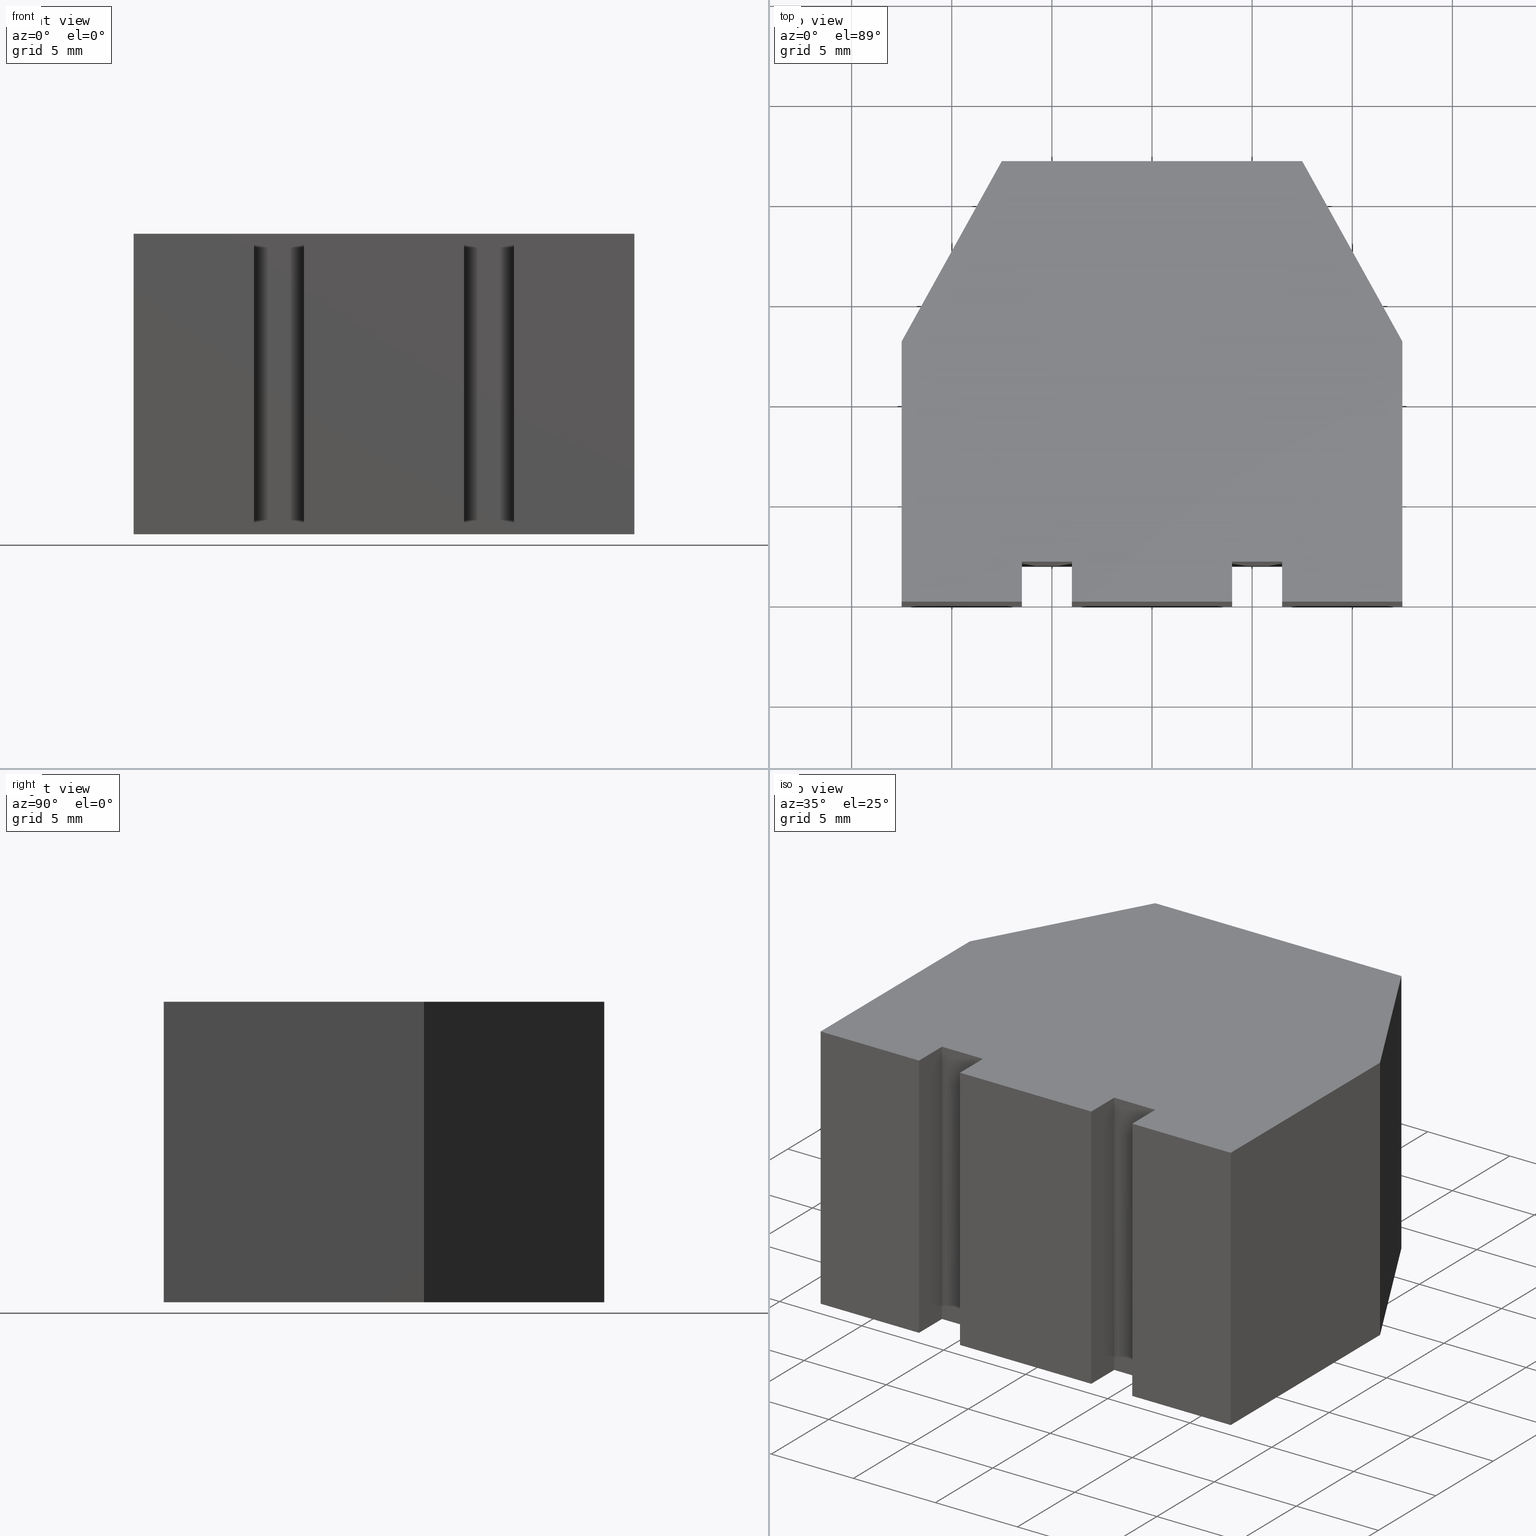
[diagram: canonical four-view strip — front | top / right | iso, engineering-drawing reading convention]
A machine part, canonical four-view strip (front | top / right | iso — engineering-drawing reading convention). The complete STEP part file that produces these views, byte-faithful:
ISO-10303-21;
HEADER;
/* Generated by software containing ST-Developer
 * from STEP Tools, Inc. (www.steptools.com) 
 */

FILE_DESCRIPTION(
/* description */ (''),
/* implementation_level */ '2;1');

FILE_NAME(
/* name */ 'E_3_01_06_07_00_WKZ-0119.stp',
/* time_stamp */ '2025-11-24T11:43:42+01:00',
/* author */ ('d.fischer'),
/* organization */ (''),
/* preprocessor_version */ 'ST-DEVELOPER v20',
/* originating_system */ 'Autodesk Inventor 2025',
/* authorisation */ '');

FILE_SCHEMA (('AUTOMOTIVE_DESIGN { 1 0 10303 214 3 1 1 }'));
ENDSEC;

DATA;
#10=MECHANICAL_DESIGN_GEOMETRIC_PRESENTATION_REPRESENTATION('',(#14,#15),
#523);
#11=SHAPE_REPRESENTATION_RELATIONSHIP('SRR','None',#530,#12);
#12=ADVANCED_BREP_SHAPE_REPRESENTATION('',(#13),#522);
#13=MANIFOLD_SOLID_BREP('Volumenk\X\F6rper1',#318);
#14=STYLED_ITEM('',(#540),#306);
#15=STYLED_ITEM('',(#539),#13);
#16=FACE_OUTER_BOUND('',#32,.T.);
#17=FACE_OUTER_BOUND('',#33,.T.);
#18=FACE_OUTER_BOUND('',#34,.T.);
#19=FACE_OUTER_BOUND('',#35,.T.);
#20=FACE_OUTER_BOUND('',#36,.T.);
#21=FACE_OUTER_BOUND('',#37,.T.);
#22=FACE_OUTER_BOUND('',#38,.T.);
#23=FACE_OUTER_BOUND('',#39,.T.);
#24=FACE_OUTER_BOUND('',#40,.T.);
#25=FACE_OUTER_BOUND('',#41,.T.);
#26=FACE_OUTER_BOUND('',#42,.T.);
#27=FACE_OUTER_BOUND('',#43,.T.);
#28=FACE_OUTER_BOUND('',#44,.T.);
#29=FACE_OUTER_BOUND('',#45,.T.);
#30=FACE_OUTER_BOUND('',#46,.T.);
#31=FACE_OUTER_BOUND('',#47,.T.);
#32=EDGE_LOOP('',(#202,#203,#204,#205,#206,#207,#208,#209,#210,#211,#212,
#213,#214,#215));
#33=EDGE_LOOP('',(#216,#217,#218,#219));
#34=EDGE_LOOP('',(#220,#221,#222,#223));
#35=EDGE_LOOP('',(#224,#225,#226,#227));
#36=EDGE_LOOP('',(#228,#229,#230,#231));
#37=EDGE_LOOP('',(#232,#233,#234,#235));
#38=EDGE_LOOP('',(#236,#237,#238,#239));
#39=EDGE_LOOP('',(#240,#241,#242,#243));
#40=EDGE_LOOP('',(#244,#245,#246,#247));
#41=EDGE_LOOP('',(#248,#249,#250,#251));
#42=EDGE_LOOP('',(#252,#253,#254,#255));
#43=EDGE_LOOP('',(#256,#257,#258,#259));
#44=EDGE_LOOP('',(#260,#261,#262,#263));
#45=EDGE_LOOP('',(#264,#265,#266,#267));
#46=EDGE_LOOP('',(#268,#269,#270,#271));
#47=EDGE_LOOP('',(#272,#273,#274,#275,#276,#277,#278,#279,#280,#281,#282,
#283,#284,#285));
#48=LINE('',#437,#90);
#49=LINE('',#439,#91);
#50=LINE('',#441,#92);
#51=LINE('',#443,#93);
#52=LINE('',#445,#94);
#53=LINE('',#447,#95);
#54=LINE('',#449,#96);
#55=LINE('',#451,#97);
#56=LINE('',#453,#98);
#57=LINE('',#455,#99);
#58=LINE('',#457,#100);
#59=LINE('',#459,#101);
#60=LINE('',#461,#102);
#61=LINE('',#462,#103);
#62=LINE('',#466,#104);
#63=LINE('',#467,#105);
#64=LINE('',#468,#106);
#65=LINE('',#471,#107);
#66=LINE('',#472,#108);
#67=LINE('',#475,#109);
#68=LINE('',#476,#110);
#69=LINE('',#479,#111);
#70=LINE('',#480,#112);
#71=LINE('',#483,#113);
#72=LINE('',#484,#114);
#73=LINE('',#487,#115);
#74=LINE('',#488,#116);
#75=LINE('',#491,#117);
#76=LINE('',#492,#118);
#77=LINE('',#495,#119);
#78=LINE('',#496,#120);
#79=LINE('',#499,#121);
#80=LINE('',#500,#122);
#81=LINE('',#503,#123);
#82=LINE('',#504,#124);
#83=LINE('',#507,#125);
#84=LINE('',#508,#126);
#85=LINE('',#511,#127);
#86=LINE('',#512,#128);
#87=LINE('',#515,#129);
#88=LINE('',#516,#130);
#89=LINE('',#518,#131);
#90=VECTOR('',#361,10.);
#91=VECTOR('',#362,10.);
#92=VECTOR('',#363,10.);
#93=VECTOR('',#364,10.);
#94=VECTOR('',#365,10.);
#95=VECTOR('',#366,10.);
#96=VECTOR('',#367,10.);
#97=VECTOR('',#368,10.);
#98=VECTOR('',#369,10.);
#99=VECTOR('',#370,10.);
#100=VECTOR('',#371,10.);
#101=VECTOR('',#372,10.);
#102=VECTOR('',#373,10.);
#103=VECTOR('',#374,10.);
#104=VECTOR('',#377,10.);
#105=VECTOR('',#378,10.);
#106=VECTOR('',#379,10.);
#107=VECTOR('',#382,10.);
#108=VECTOR('',#383,10.);
#109=VECTOR('',#386,10.);
#110=VECTOR('',#387,10.);
#111=VECTOR('',#390,10.);
#112=VECTOR('',#391,10.);
#113=VECTOR('',#394,10.);
#114=VECTOR('',#395,10.);
#115=VECTOR('',#398,10.);
#116=VECTOR('',#399,10.);
#117=VECTOR('',#402,10.);
#118=VECTOR('',#403,10.);
#119=VECTOR('',#406,10.);
#120=VECTOR('',#407,10.);
#121=VECTOR('',#410,10.);
#122=VECTOR('',#411,10.);
#123=VECTOR('',#414,10.);
#124=VECTOR('',#415,10.);
#125=VECTOR('',#418,10.);
#126=VECTOR('',#419,10.);
#127=VECTOR('',#422,10.);
#128=VECTOR('',#423,10.);
#129=VECTOR('',#426,10.);
#130=VECTOR('',#427,10.);
#131=VECTOR('',#430,10.);
#132=VERTEX_POINT('',#435);
#133=VERTEX_POINT('',#436);
#134=VERTEX_POINT('',#438);
#135=VERTEX_POINT('',#440);
#136=VERTEX_POINT('',#442);
#137=VERTEX_POINT('',#444);
#138=VERTEX_POINT('',#446);
#139=VERTEX_POINT('',#448);
#140=VERTEX_POINT('',#450);
#141=VERTEX_POINT('',#452);
#142=VERTEX_POINT('',#454);
#143=VERTEX_POINT('',#456);
#144=VERTEX_POINT('',#458);
#145=VERTEX_POINT('',#460);
#146=VERTEX_POINT('',#464);
#147=VERTEX_POINT('',#465);
#148=VERTEX_POINT('',#470);
#149=VERTEX_POINT('',#474);
#150=VERTEX_POINT('',#478);
#151=VERTEX_POINT('',#482);
#152=VERTEX_POINT('',#486);
#153=VERTEX_POINT('',#490);
#154=VERTEX_POINT('',#494);
#155=VERTEX_POINT('',#498);
#156=VERTEX_POINT('',#502);
#157=VERTEX_POINT('',#506);
#158=VERTEX_POINT('',#510);
#159=VERTEX_POINT('',#514);
#160=EDGE_CURVE('',#132,#133,#48,.T.);
#161=EDGE_CURVE('',#134,#132,#49,.T.);
#162=EDGE_CURVE('',#135,#134,#50,.T.);
#163=EDGE_CURVE('',#136,#135,#51,.T.);
#164=EDGE_CURVE('',#137,#136,#52,.T.);
#165=EDGE_CURVE('',#138,#137,#53,.T.);
#166=EDGE_CURVE('',#139,#138,#54,.T.);
#167=EDGE_CURVE('',#140,#139,#55,.T.);
#168=EDGE_CURVE('',#141,#140,#56,.T.);
#169=EDGE_CURVE('',#142,#141,#57,.T.);
#170=EDGE_CURVE('',#143,#142,#58,.T.);
#171=EDGE_CURVE('',#144,#143,#59,.T.);
#172=EDGE_CURVE('',#145,#144,#60,.T.);
#173=EDGE_CURVE('',#133,#145,#61,.T.);
#174=EDGE_CURVE('',#146,#147,#62,.T.);
#175=EDGE_CURVE('',#147,#135,#63,.T.);
#176=EDGE_CURVE('',#146,#134,#64,.T.);
#177=EDGE_CURVE('',#147,#148,#65,.T.);
#178=EDGE_CURVE('',#148,#136,#66,.T.);
#179=EDGE_CURVE('',#148,#149,#67,.T.);
#180=EDGE_CURVE('',#149,#137,#68,.T.);
#181=EDGE_CURVE('',#149,#150,#69,.T.);
#182=EDGE_CURVE('',#150,#138,#70,.T.);
#183=EDGE_CURVE('',#150,#151,#71,.T.);
#184=EDGE_CURVE('',#151,#139,#72,.T.);
#185=EDGE_CURVE('',#151,#152,#73,.T.);
#186=EDGE_CURVE('',#152,#140,#74,.T.);
#187=EDGE_CURVE('',#152,#153,#75,.T.);
#188=EDGE_CURVE('',#153,#141,#76,.T.);
#189=EDGE_CURVE('',#153,#154,#77,.T.);
#190=EDGE_CURVE('',#154,#142,#78,.T.);
#191=EDGE_CURVE('',#154,#155,#79,.T.);
#192=EDGE_CURVE('',#155,#143,#80,.T.);
#193=EDGE_CURVE('',#155,#156,#81,.T.);
#194=EDGE_CURVE('',#156,#144,#82,.T.);
#195=EDGE_CURVE('',#156,#157,#83,.T.);
#196=EDGE_CURVE('',#157,#145,#84,.T.);
#197=EDGE_CURVE('',#157,#158,#85,.T.);
#198=EDGE_CURVE('',#158,#133,#86,.T.);
#199=EDGE_CURVE('',#158,#159,#87,.T.);
#200=EDGE_CURVE('',#132,#159,#88,.T.);
#201=EDGE_CURVE('',#159,#146,#89,.T.);
#202=ORIENTED_EDGE('',*,*,#160,.F.);
#203=ORIENTED_EDGE('',*,*,#161,.F.);
#204=ORIENTED_EDGE('',*,*,#162,.F.);
#205=ORIENTED_EDGE('',*,*,#163,.F.);
#206=ORIENTED_EDGE('',*,*,#164,.F.);
#207=ORIENTED_EDGE('',*,*,#165,.F.);
#208=ORIENTED_EDGE('',*,*,#166,.F.);
#209=ORIENTED_EDGE('',*,*,#167,.F.);
#210=ORIENTED_EDGE('',*,*,#168,.F.);
#211=ORIENTED_EDGE('',*,*,#169,.F.);
#212=ORIENTED_EDGE('',*,*,#170,.F.);
#213=ORIENTED_EDGE('',*,*,#171,.F.);
#214=ORIENTED_EDGE('',*,*,#172,.F.);
#215=ORIENTED_EDGE('',*,*,#173,.F.);
#216=ORIENTED_EDGE('',*,*,#174,.T.);
#217=ORIENTED_EDGE('',*,*,#175,.T.);
#218=ORIENTED_EDGE('',*,*,#162,.T.);
#219=ORIENTED_EDGE('',*,*,#176,.F.);
#220=ORIENTED_EDGE('',*,*,#177,.T.);
#221=ORIENTED_EDGE('',*,*,#178,.T.);
#222=ORIENTED_EDGE('',*,*,#163,.T.);
#223=ORIENTED_EDGE('',*,*,#175,.F.);
#224=ORIENTED_EDGE('',*,*,#179,.T.);
#225=ORIENTED_EDGE('',*,*,#180,.T.);
#226=ORIENTED_EDGE('',*,*,#164,.T.);
#227=ORIENTED_EDGE('',*,*,#178,.F.);
#228=ORIENTED_EDGE('',*,*,#181,.T.);
#229=ORIENTED_EDGE('',*,*,#182,.T.);
#230=ORIENTED_EDGE('',*,*,#165,.T.);
#231=ORIENTED_EDGE('',*,*,#180,.F.);
#232=ORIENTED_EDGE('',*,*,#183,.T.);
#233=ORIENTED_EDGE('',*,*,#184,.T.);
#234=ORIENTED_EDGE('',*,*,#166,.T.);
#235=ORIENTED_EDGE('',*,*,#182,.F.);
#236=ORIENTED_EDGE('',*,*,#185,.T.);
#237=ORIENTED_EDGE('',*,*,#186,.T.);
#238=ORIENTED_EDGE('',*,*,#167,.T.);
#239=ORIENTED_EDGE('',*,*,#184,.F.);
#240=ORIENTED_EDGE('',*,*,#187,.T.);
#241=ORIENTED_EDGE('',*,*,#188,.T.);
#242=ORIENTED_EDGE('',*,*,#168,.T.);
#243=ORIENTED_EDGE('',*,*,#186,.F.);
#244=ORIENTED_EDGE('',*,*,#189,.T.);
#245=ORIENTED_EDGE('',*,*,#190,.T.);
#246=ORIENTED_EDGE('',*,*,#169,.T.);
#247=ORIENTED_EDGE('',*,*,#188,.F.);
#248=ORIENTED_EDGE('',*,*,#191,.T.);
#249=ORIENTED_EDGE('',*,*,#192,.T.);
#250=ORIENTED_EDGE('',*,*,#170,.T.);
#251=ORIENTED_EDGE('',*,*,#190,.F.);
#252=ORIENTED_EDGE('',*,*,#193,.T.);
#253=ORIENTED_EDGE('',*,*,#194,.T.);
#254=ORIENTED_EDGE('',*,*,#171,.T.);
#255=ORIENTED_EDGE('',*,*,#192,.F.);
#256=ORIENTED_EDGE('',*,*,#195,.T.);
#257=ORIENTED_EDGE('',*,*,#196,.T.);
#258=ORIENTED_EDGE('',*,*,#172,.T.);
#259=ORIENTED_EDGE('',*,*,#194,.F.);
#260=ORIENTED_EDGE('',*,*,#197,.T.);
#261=ORIENTED_EDGE('',*,*,#198,.T.);
#262=ORIENTED_EDGE('',*,*,#173,.T.);
#263=ORIENTED_EDGE('',*,*,#196,.F.);
#264=ORIENTED_EDGE('',*,*,#199,.T.);
#265=ORIENTED_EDGE('',*,*,#200,.F.);
#266=ORIENTED_EDGE('',*,*,#160,.T.);
#267=ORIENTED_EDGE('',*,*,#198,.F.);
#268=ORIENTED_EDGE('',*,*,#201,.T.);
#269=ORIENTED_EDGE('',*,*,#176,.T.);
#270=ORIENTED_EDGE('',*,*,#161,.T.);
#271=ORIENTED_EDGE('',*,*,#200,.T.);
#272=ORIENTED_EDGE('',*,*,#174,.F.);
#273=ORIENTED_EDGE('',*,*,#201,.F.);
#274=ORIENTED_EDGE('',*,*,#199,.F.);
#275=ORIENTED_EDGE('',*,*,#197,.F.);
#276=ORIENTED_EDGE('',*,*,#195,.F.);
#277=ORIENTED_EDGE('',*,*,#193,.F.);
#278=ORIENTED_EDGE('',*,*,#191,.F.);
#279=ORIENTED_EDGE('',*,*,#189,.F.);
#280=ORIENTED_EDGE('',*,*,#187,.F.);
#281=ORIENTED_EDGE('',*,*,#185,.F.);
#282=ORIENTED_EDGE('',*,*,#183,.F.);
#283=ORIENTED_EDGE('',*,*,#181,.F.);
#284=ORIENTED_EDGE('',*,*,#179,.F.);
#285=ORIENTED_EDGE('',*,*,#177,.F.);
#286=PLANE('',#341);
#287=PLANE('',#342);
#288=PLANE('',#343);
#289=PLANE('',#344);
#290=PLANE('',#345);
#291=PLANE('',#346);
#292=PLANE('',#347);
#293=PLANE('',#348);
#294=PLANE('',#349);
#295=PLANE('',#350);
#296=PLANE('',#351);
#297=PLANE('',#352);
#298=PLANE('',#353);
#299=PLANE('',#354);
#300=PLANE('',#355);
#301=PLANE('',#356);
#302=ADVANCED_FACE('',(#16),#286,.F.);
#303=ADVANCED_FACE('',(#17),#287,.T.);
#304=ADVANCED_FACE('',(#18),#288,.T.);
#305=ADVANCED_FACE('',(#19),#289,.T.);
#306=ADVANCED_FACE('',(#20),#290,.T.);
#307=ADVANCED_FACE('',(#21),#291,.T.);
#308=ADVANCED_FACE('',(#22),#292,.T.);
#309=ADVANCED_FACE('',(#23),#293,.T.);
#310=ADVANCED_FACE('',(#24),#294,.T.);
#311=ADVANCED_FACE('',(#25),#295,.T.);
#312=ADVANCED_FACE('',(#26),#296,.T.);
#313=ADVANCED_FACE('',(#27),#297,.T.);
#314=ADVANCED_FACE('',(#28),#298,.T.);
#315=ADVANCED_FACE('',(#29),#299,.T.);
#316=ADVANCED_FACE('',(#30),#300,.T.);
#317=ADVANCED_FACE('',(#31),#301,.T.);
#318=CLOSED_SHELL('',(#302,#303,#304,#305,#306,#307,#308,#309,#310,#311,
#312,#313,#314,#315,#316,#317));
#319=DERIVED_UNIT_ELEMENT(#322,1.);
#320=DERIVED_UNIT_ELEMENT(#525,-3.);
#321=DIMENSIONAL_EXPONENTS(0.,1.,0.,0.,0.,0.,0.);
#322=(
CONVERSION_BASED_UNIT('gram',#324)
MASS_UNIT()
NAMED_UNIT(#321)
);
#323=(
MASS_UNIT()
NAMED_UNIT(*)
SI_UNIT(.KILO.,.GRAM.)
);
#324=MASS_MEASURE_WITH_UNIT(MASS_MEASURE(0.001),#323);
#325=DERIVED_UNIT((#319,#320));
#326=MEASURE_REPRESENTATION_ITEM('density measure',
POSITIVE_RATIO_MEASURE(8.03),#325);
#327=PROPERTY_DEFINITION_REPRESENTATION(#332,#329);
#328=PROPERTY_DEFINITION_REPRESENTATION(#333,#330);
#329=REPRESENTATION('material name',(#331),#522);
#330=REPRESENTATION('density',(#326),#522);
#331=DESCRIPTIVE_REPRESENTATION_ITEM('1.4301','1.4301');
#332=PROPERTY_DEFINITION('material property','material name',#532);
#333=PROPERTY_DEFINITION('material property','density of part',#532);
#334=DATE_TIME_ROLE('creation_date');
#335=APPLIED_DATE_AND_TIME_ASSIGNMENT(#336,#334,(#532));
#336=DATE_AND_TIME(#337,#338);
#337=CALENDAR_DATE(2011,26,10);
#338=LOCAL_TIME(0,0,0.,#339);
#339=COORDINATED_UNIVERSAL_TIME_OFFSET(0,0,.BEHIND.);
#340=AXIS2_PLACEMENT_3D('',#433,#357,#358);
#341=AXIS2_PLACEMENT_3D('',#434,#359,#360);
#342=AXIS2_PLACEMENT_3D('',#463,#375,#376);
#343=AXIS2_PLACEMENT_3D('',#469,#380,#381);
#344=AXIS2_PLACEMENT_3D('',#473,#384,#385);
#345=AXIS2_PLACEMENT_3D('',#477,#388,#389);
#346=AXIS2_PLACEMENT_3D('',#481,#392,#393);
#347=AXIS2_PLACEMENT_3D('',#485,#396,#397);
#348=AXIS2_PLACEMENT_3D('',#489,#400,#401);
#349=AXIS2_PLACEMENT_3D('',#493,#404,#405);
#350=AXIS2_PLACEMENT_3D('',#497,#408,#409);
#351=AXIS2_PLACEMENT_3D('',#501,#412,#413);
#352=AXIS2_PLACEMENT_3D('',#505,#416,#417);
#353=AXIS2_PLACEMENT_3D('',#509,#420,#421);
#354=AXIS2_PLACEMENT_3D('',#513,#424,#425);
#355=AXIS2_PLACEMENT_3D('',#517,#428,#429);
#356=AXIS2_PLACEMENT_3D('',#519,#431,#432);
#357=DIRECTION('axis',(0.,0.,1.));
#358=DIRECTION('refdir',(1.,0.,0.));
#359=DIRECTION('center_axis',(0.,0.,1.));
#360=DIRECTION('ref_axis',(1.,0.,0.));
#361=DIRECTION('',(0.,1.,0.));
#362=DIRECTION('',(1.,0.,0.));
#363=DIRECTION('',(-5.55111512312578E-16,-1.,0.));
#364=DIRECTION('',(1.,0.,0.));
#365=DIRECTION('',(0.,1.,0.));
#366=DIRECTION('',(1.,0.,0.));
#367=DIRECTION('',(0.,-1.,0.));
#368=DIRECTION('',(1.,0.,0.));
#369=DIRECTION('',(-5.55111512312578E-16,1.,0.));
#370=DIRECTION('',(1.,0.,0.));
#371=DIRECTION('',(0.,-1.,0.));
#372=DIRECTION('',(-0.485642931178632,-0.874157276121538,0.));
#373=DIRECTION('',(-1.,0.,0.));
#374=DIRECTION('',(-0.485642931178632,0.874157276121538,0.));
#375=DIRECTION('center_axis',(-1.,5.55111512312578E-16,0.));
#376=DIRECTION('ref_axis',(0.,0.,1.));
#377=DIRECTION('',(5.55111512312578E-16,1.,0.));
#378=DIRECTION('',(0.,0.,-1.));
#379=DIRECTION('',(0.,0.,-1.));
#380=DIRECTION('center_axis',(0.,-1.,0.));
#381=DIRECTION('ref_axis',(0.,0.,-1.));
#382=DIRECTION('',(-1.,0.,0.));
#383=DIRECTION('',(0.,0.,-1.));
#384=DIRECTION('center_axis',(1.,0.,0.));
#385=DIRECTION('ref_axis',(0.,0.,-1.));
#386=DIRECTION('',(0.,-1.,0.));
#387=DIRECTION('',(0.,0.,-1.));
#388=DIRECTION('center_axis',(0.,-1.,0.));
#389=DIRECTION('ref_axis',(0.,0.,-1.));
#390=DIRECTION('',(-1.,0.,0.));
#391=DIRECTION('',(0.,0.,-1.));
#392=DIRECTION('center_axis',(-1.,0.,0.));
#393=DIRECTION('ref_axis',(0.,0.,1.));
#394=DIRECTION('',(0.,1.,0.));
#395=DIRECTION('',(0.,0.,-1.));
#396=DIRECTION('center_axis',(0.,-1.,0.));
#397=DIRECTION('ref_axis',(0.,0.,-1.));
#398=DIRECTION('',(-1.,0.,0.));
#399=DIRECTION('',(0.,0.,-1.));
#400=DIRECTION('center_axis',(1.,5.55111512312578E-16,0.));
#401=DIRECTION('ref_axis',(0.,0.,-1.));
#402=DIRECTION('',(5.55111512312578E-16,-1.,0.));
#403=DIRECTION('',(0.,0.,-1.));
#404=DIRECTION('center_axis',(0.,-1.,0.));
#405=DIRECTION('ref_axis',(0.,0.,-1.));
#406=DIRECTION('',(-1.,0.,0.));
#407=DIRECTION('',(0.,0.,-1.));
#408=DIRECTION('center_axis',(-1.,0.,0.));
#409=DIRECTION('ref_axis',(0.,0.,1.));
#410=DIRECTION('',(0.,1.,0.));
#411=DIRECTION('',(0.,0.,-1.));
#412=DIRECTION('center_axis',(-0.874157276121538,0.485642931178632,0.));
#413=DIRECTION('ref_axis',(0.,0.,1.));
#414=DIRECTION('',(0.485642931178632,0.874157276121538,0.));
#415=DIRECTION('',(0.,0.,-1.));
#416=DIRECTION('center_axis',(0.,1.,0.));
#417=DIRECTION('ref_axis',(0.,0.,1.));
#418=DIRECTION('',(1.,0.,0.));
#419=DIRECTION('',(0.,0.,-1.));
#420=DIRECTION('center_axis',(0.874157276121538,0.485642931178632,0.));
#421=DIRECTION('ref_axis',(0.,0.,-1.));
#422=DIRECTION('',(0.485642931178632,-0.874157276121538,0.));
#423=DIRECTION('',(0.,0.,-1.));
#424=DIRECTION('center_axis',(1.,0.,0.));
#425=DIRECTION('ref_axis',(0.,0.,-1.));
#426=DIRECTION('',(0.,-1.,0.));
#427=DIRECTION('',(0.,0.,1.));
#428=DIRECTION('center_axis',(0.,-1.,0.));
#429=DIRECTION('ref_axis',(0.,0.,-1.));
#430=DIRECTION('',(-1.,0.,0.));
#431=DIRECTION('center_axis',(0.,0.,1.));
#432=DIRECTION('ref_axis',(1.,0.,0.));
#433=CARTESIAN_POINT('',(0.,0.,0.));
#434=CARTESIAN_POINT('Origin',(0.,9.27513865783368,-7.5));
#435=CARTESIAN_POINT('',(12.5,0.,-7.5));
#436=CARTESIAN_POINT('',(12.5,13.,-7.5));
#437=CARTESIAN_POINT('',(12.5,13.,-7.5));
#438=CARTESIAN_POINT('',(6.5,0.,-7.5));
#439=CARTESIAN_POINT('',(12.5,0.,-7.5));
#440=CARTESIAN_POINT('',(6.5,2.,-7.5));
#441=CARTESIAN_POINT('',(6.5,0.,-7.5));
#442=CARTESIAN_POINT('',(4.,2.,-7.5));
#443=CARTESIAN_POINT('',(6.5,2.,-7.5));
#444=CARTESIAN_POINT('',(4.,0.,-7.5));
#445=CARTESIAN_POINT('',(4.,2.,-7.5));
#446=CARTESIAN_POINT('',(-4.,0.,-7.5));
#447=CARTESIAN_POINT('',(4.,0.,-7.5));
#448=CARTESIAN_POINT('',(-4.,2.,-7.5));
#449=CARTESIAN_POINT('',(-4.,0.,-7.5));
#450=CARTESIAN_POINT('',(-6.5,2.,-7.5));
#451=CARTESIAN_POINT('',(-4.,2.,-7.5));
#452=CARTESIAN_POINT('',(-6.5,0.,-7.5));
#453=CARTESIAN_POINT('',(-6.5,2.,-7.5));
#454=CARTESIAN_POINT('',(-12.5,0.,-7.5));
#455=CARTESIAN_POINT('',(-6.5,0.,-7.5));
#456=CARTESIAN_POINT('',(-12.5,13.,-7.5));
#457=CARTESIAN_POINT('',(-12.5,0.,-7.5));
#458=CARTESIAN_POINT('',(-7.5,22.,-7.5));
#459=CARTESIAN_POINT('',(-12.5,13.,-7.5));
#460=CARTESIAN_POINT('',(7.5,22.,-7.5));
#461=CARTESIAN_POINT('',(-7.5,22.,-7.5));
#462=CARTESIAN_POINT('',(7.5,22.,-7.5));
#463=CARTESIAN_POINT('Origin',(6.5,0.,0.));
#464=CARTESIAN_POINT('',(6.5,0.,7.5));
#465=CARTESIAN_POINT('',(6.5,2.,7.5));
#466=CARTESIAN_POINT('',(6.5,0.,7.5));
#467=CARTESIAN_POINT('',(6.5,2.,0.));
#468=CARTESIAN_POINT('',(6.5,0.,0.));
#469=CARTESIAN_POINT('Origin',(6.5,2.,0.));
#470=CARTESIAN_POINT('',(4.,2.,7.5));
#471=CARTESIAN_POINT('',(6.5,2.,7.5));
#472=CARTESIAN_POINT('',(4.,2.,0.));
#473=CARTESIAN_POINT('Origin',(4.,2.,0.));
#474=CARTESIAN_POINT('',(4.,0.,7.5));
#475=CARTESIAN_POINT('',(4.,2.,7.5));
#476=CARTESIAN_POINT('',(4.,0.,0.));
#477=CARTESIAN_POINT('Origin',(4.,0.,0.));
#478=CARTESIAN_POINT('',(-4.,0.,7.5));
#479=CARTESIAN_POINT('',(4.,0.,7.5));
#480=CARTESIAN_POINT('',(-4.,0.,0.));
#481=CARTESIAN_POINT('Origin',(-4.,0.,0.));
#482=CARTESIAN_POINT('',(-4.,2.,7.5));
#483=CARTESIAN_POINT('',(-4.,0.,7.5));
#484=CARTESIAN_POINT('',(-4.,2.,0.));
#485=CARTESIAN_POINT('Origin',(-4.,2.,0.));
#486=CARTESIAN_POINT('',(-6.5,2.,7.5));
#487=CARTESIAN_POINT('',(-4.,2.,7.5));
#488=CARTESIAN_POINT('',(-6.5,2.,0.));
#489=CARTESIAN_POINT('Origin',(-6.5,2.,0.));
#490=CARTESIAN_POINT('',(-6.5,0.,7.5));
#491=CARTESIAN_POINT('',(-6.5,2.,7.5));
#492=CARTESIAN_POINT('',(-6.5,0.,0.));
#493=CARTESIAN_POINT('Origin',(-6.5,0.,0.));
#494=CARTESIAN_POINT('',(-12.5,0.,7.5));
#495=CARTESIAN_POINT('',(-6.5,0.,7.5));
#496=CARTESIAN_POINT('',(-12.5,0.,0.));
#497=CARTESIAN_POINT('Origin',(-12.5,0.,0.));
#498=CARTESIAN_POINT('',(-12.5,13.,7.5));
#499=CARTESIAN_POINT('',(-12.5,0.,7.5));
#500=CARTESIAN_POINT('',(-12.5,13.,0.));
#501=CARTESIAN_POINT('Origin',(-12.5,13.,0.));
#502=CARTESIAN_POINT('',(-7.5,22.,7.5));
#503=CARTESIAN_POINT('',(-12.5,13.,7.5));
#504=CARTESIAN_POINT('',(-7.5,22.,0.));
#505=CARTESIAN_POINT('Origin',(-7.5,22.,0.));
#506=CARTESIAN_POINT('',(7.5,22.,7.5));
#507=CARTESIAN_POINT('',(-7.5,22.,7.5));
#508=CARTESIAN_POINT('',(7.5,22.,0.));
#509=CARTESIAN_POINT('Origin',(7.5,22.,0.));
#510=CARTESIAN_POINT('',(12.5,13.,7.5));
#511=CARTESIAN_POINT('',(7.5,22.,7.5));
#512=CARTESIAN_POINT('',(12.5,13.,0.));
#513=CARTESIAN_POINT('Origin',(12.5,13.,0.));
#514=CARTESIAN_POINT('',(12.5,0.,7.5));
#515=CARTESIAN_POINT('',(12.5,13.,7.5));
#516=CARTESIAN_POINT('',(12.5,0.,0.));
#517=CARTESIAN_POINT('Origin',(12.5,0.,0.));
#518=CARTESIAN_POINT('',(12.5,0.,7.5));
#519=CARTESIAN_POINT('Origin',(-2.42861286636753E-16,9.27513865783368,7.5));
#520=UNCERTAINTY_MEASURE_WITH_UNIT(LENGTH_MEASURE(0.01),#524,
'DISTANCE_ACCURACY_VALUE',
'Maximum model space distance between geometric entities at asserted c
onnectivities');
#521=UNCERTAINTY_MEASURE_WITH_UNIT(LENGTH_MEASURE(0.01),#524,
'DISTANCE_ACCURACY_VALUE',
'Maximum model space distance between geometric entities at asserted c
onnectivities');
#522=(
GEOMETRIC_REPRESENTATION_CONTEXT(3)
GLOBAL_UNCERTAINTY_ASSIGNED_CONTEXT((#520))
GLOBAL_UNIT_ASSIGNED_CONTEXT((#524,#526,#527))
REPRESENTATION_CONTEXT('','3D')
);
#523=(
GEOMETRIC_REPRESENTATION_CONTEXT(3)
GLOBAL_UNCERTAINTY_ASSIGNED_CONTEXT((#521))
GLOBAL_UNIT_ASSIGNED_CONTEXT((#524,#526,#527))
REPRESENTATION_CONTEXT('','3D')
);
#524=(
LENGTH_UNIT()
NAMED_UNIT(*)
SI_UNIT(.MILLI.,.METRE.)
);
#525=(
LENGTH_UNIT()
NAMED_UNIT(*)
SI_UNIT(.CENTI.,.METRE.)
);
#526=(
NAMED_UNIT(*)
PLANE_ANGLE_UNIT()
SI_UNIT($,.RADIAN.)
);
#527=(
NAMED_UNIT(*)
SI_UNIT($,.STERADIAN.)
SOLID_ANGLE_UNIT()
);
#528=SHAPE_DEFINITION_REPRESENTATION(#529,#530);
#529=PRODUCT_DEFINITION_SHAPE('',$,#532);
#530=SHAPE_REPRESENTATION('',(#340),#522);
#531=PRODUCT_DEFINITION_CONTEXT('part definition',#536,'design');
#532=PRODUCT_DEFINITION('WKZ-0119','E_3_01_06_07_00_WKZ-0119',#533,#531);
#533=PRODUCT_DEFINITION_FORMATION('',$,#538);
#534=PRODUCT_RELATED_PRODUCT_CATEGORY('E_3_01_06_07_00_WKZ-0119',
'E_3_01_06_07_00_WKZ-0119',(#538));
#535=APPLICATION_PROTOCOL_DEFINITION('international standard',
'automotive_design',2009,#536);
#536=APPLICATION_CONTEXT(
'Core Data for Automotive Mechanical Design Process');
#537=PRODUCT_CONTEXT('part definition',#536,'mechanical');
#538=PRODUCT('WKZ-0119','E_3_01_06_07_00_WKZ-0119',$,(#537));
#539=PRESENTATION_STYLE_ASSIGNMENT((#541));
#540=PRESENTATION_STYLE_ASSIGNMENT((#542));
#541=SURFACE_STYLE_USAGE(.BOTH.,#545);
#542=SURFACE_STYLE_USAGE(.BOTH.,#546);
#543=SURFACE_STYLE_RENDERING_WITH_PROPERTIES($,#553,(#544));
#544=SURFACE_STYLE_TRANSPARENT(0.);
#545=SURFACE_SIDE_STYLE('',(#547,#543));
#546=SURFACE_SIDE_STYLE('',(#548));
#547=SURFACE_STYLE_FILL_AREA(#549);
#548=SURFACE_STYLE_FILL_AREA(#550);
#549=FILL_AREA_STYLE('',(#551));
#550=FILL_AREA_STYLE('',(#552));
#551=FILL_AREA_STYLE_COLOUR('',#553);
#552=FILL_AREA_STYLE_COLOUR('',#554);
#553=COLOUR_RGB('',0.92156862745098,0.92156862745098,0.92156862745098);
#554=COLOUR_RGB('',0.16078431372549,0.16078431372549,0.16078431372549);
ENDSEC;
END-ISO-10303-21;
